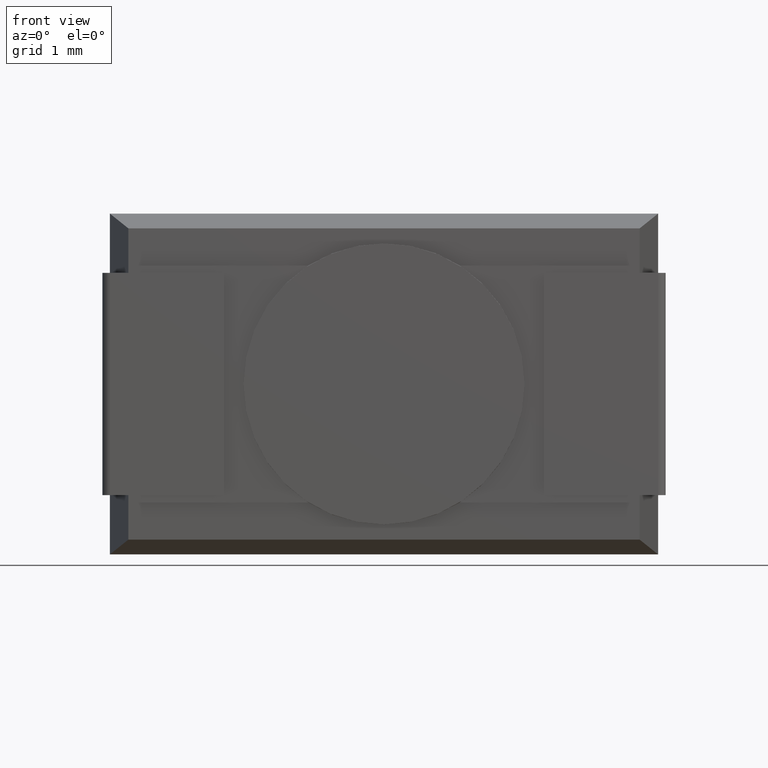
[diagram: clean part render]
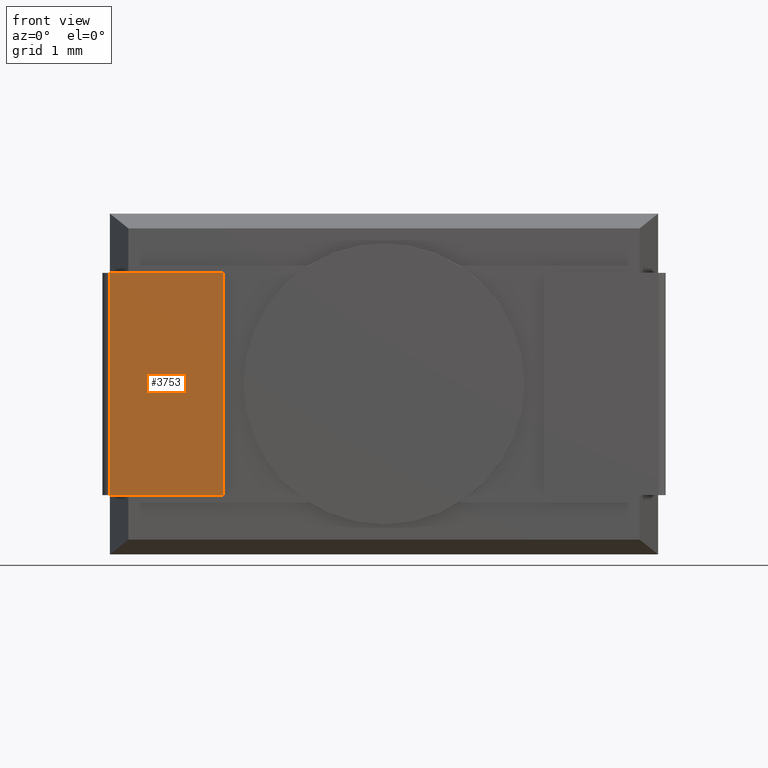
[diagram: same view with one face highlighted and labeled with its STEP entity id]
A machine part, front view. The second image highlights one B-rep face of the part: STEP entity #3753.
In plain terms, the highlighted planar face has unit normal (0, -1, 0).
Its self-contained STEP definition (entity closure, byte-faithful):
#31 = CARTESIAN_POINT ( 'NONE',  ( -0.1009999999999998260, -0.1000000000000000472, -3.799999999999999822 ) ) ;
#39 = EDGE_CURVE ( 'NONE', #1744, #623, #3356, .T. ) ;
#117 = DIRECTION ( 'NONE',  ( 0.000000000000000000, 0.000000000000000000, 1.000000000000000000 ) ) ;
#121 = EDGE_CURVE ( 'NONE', #4254, #623, #1081, .T. ) ;
#320 = CARTESIAN_POINT ( 'NONE',  ( -0.1009999999999998260, -0.1000000000000000472, -0.7999999999999999334 ) ) ;
#388 = CARTESIAN_POINT ( 'NONE',  ( -0.0009999999999998345716, -0.1000000000000000472, -3.799999999999999822 ) ) ;
#395 = DIRECTION ( 'NONE',  ( 1.000000000000000000, 0.000000000000000000, 0.000000000000000000 ) ) ;
#430 = CARTESIAN_POINT ( 'NONE',  ( 1.537779882194698855, -0.1000000000000000472, -3.799999999999999822 ) ) ;
#623 = VERTEX_POINT ( 'NONE', #2877 ) ;
#745 = CARTESIAN_POINT ( 'NONE',  ( 1.537779882194698855, -0.1000000000000000472, -3.799999999999999822 ) ) ;
#946 = EDGE_LOOP ( 'NONE', ( #3329, #3008, #2783, #3264 ) ) ;
#1031 = CARTESIAN_POINT ( 'NONE',  ( -0.0009999999999998345716, -0.1000000000000000472, -0.7999999999999999334 ) ) ;
#1081 = LINE ( 'NONE', #745, #2398 ) ;
#1130 = FACE_OUTER_BOUND ( 'NONE', #946, .T. ) ;
#1166 = VECTOR ( 'NONE', #2162, 1000.000000000000000 ) ;
#1382 = LINE ( 'NONE', #2660, #2694 ) ;
#1417 = VECTOR ( 'NONE', #1768, 1000.000000000000000 ) ;
#1516 = EDGE_CURVE ( 'NONE', #1744, #3706, #3868, .T. ) ;
#1744 = VERTEX_POINT ( 'NONE', #1031 ) ;
#1768 = DIRECTION ( 'NONE',  ( 1.000000000000000000, 0.000000000000000000, 0.000000000000000000 ) ) ;
#2146 = CARTESIAN_POINT ( 'NONE',  ( -0.0009999999999998345716, -0.1000000000000000472, -3.799999999999999822 ) ) ;
#2162 = DIRECTION ( 'NONE',  ( -0.000000000000000000, -0.000000000000000000, -1.000000000000000000 ) ) ;
#2398 = VECTOR ( 'NONE', #117, 1000.000000000000000 ) ;
#2549 = AXIS2_PLACEMENT_3D ( 'NONE', #31, #2745, #3731 ) ;
#2660 = CARTESIAN_POINT ( 'NONE',  ( -0.1009999999999998260, -0.1000000000000000472, -3.799999999999999822 ) ) ;
#2694 = VECTOR ( 'NONE', #395, 1000.000000000000000 ) ;
#2708 = PLANE ( 'NONE',  #2549 ) ;
#2745 = DIRECTION ( 'NONE',  ( 0.000000000000000000, -1.000000000000000000, 0.000000000000000000 ) ) ;
#2783 = ORIENTED_EDGE ( 'NONE', *, *, #2846, .T. ) ;
#2846 = EDGE_CURVE ( 'NONE', #3706, #4254, #1382, .T. ) ;
#2877 = CARTESIAN_POINT ( 'NONE',  ( 1.537779882194698855, -0.1000000000000000472, -0.7999999999999999334 ) ) ;
#3008 = ORIENTED_EDGE ( 'NONE', *, *, #1516, .T. ) ;
#3264 = ORIENTED_EDGE ( 'NONE', *, *, #121, .T. ) ;
#3329 = ORIENTED_EDGE ( 'NONE', *, *, #39, .F. ) ;
#3356 = LINE ( 'NONE', #320, #1417 ) ;
#3706 = VERTEX_POINT ( 'NONE', #388 ) ;
#3731 = DIRECTION ( 'NONE',  ( 0.000000000000000000, -0.000000000000000000, -1.000000000000000000 ) ) ;
#3753 = ADVANCED_FACE ( 'NONE', ( #1130 ), #2708, .T. ) ;
#3868 = LINE ( 'NONE', #2146, #1166 ) ;
#4254 = VERTEX_POINT ( 'NONE', #430 ) ;